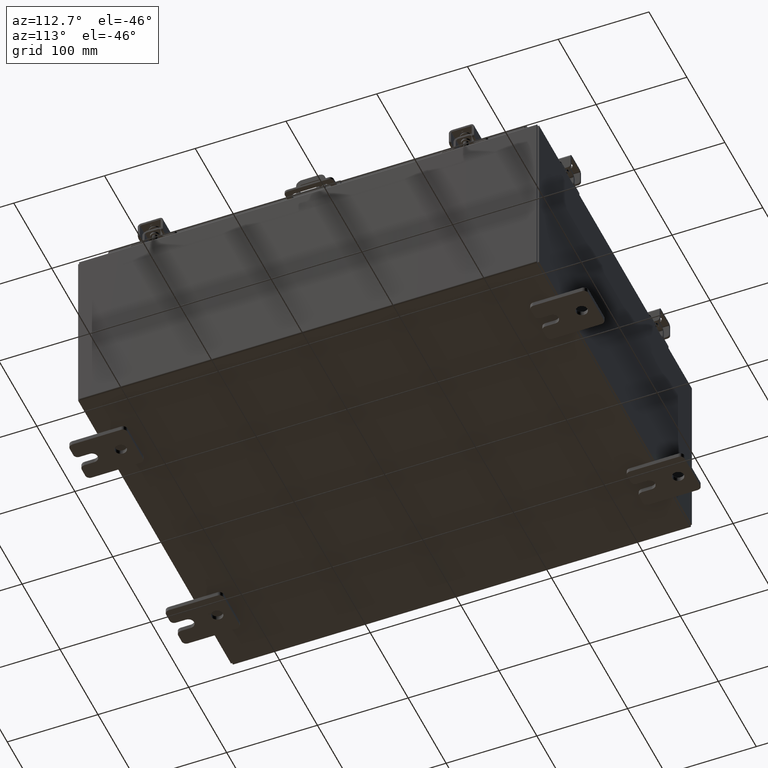
[diagram: clean part render]
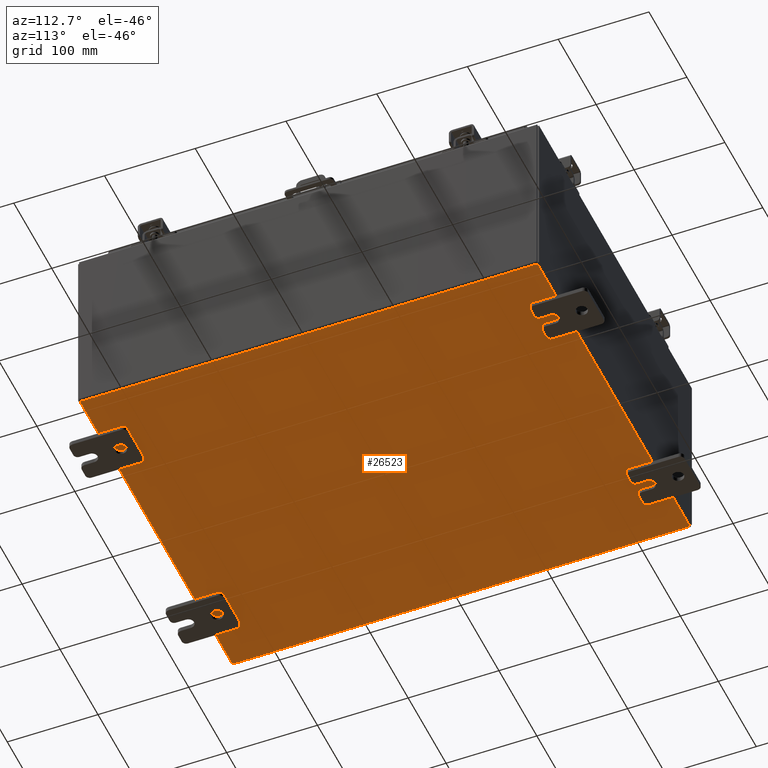
[diagram: same view with one face highlighted and labeled with its STEP entity id]
A machine part, auxiliary view. The second image highlights one B-rep face of the part: STEP entity #26523.
In plain terms, the highlighted planar face has unit normal (0, 0, -1).
Its self-contained STEP definition (entity closure, byte-faithful):
#1952 = VERTEX_POINT ( 'NONE', #5016 ) ;
#3849 = LINE ( 'NONE', #15321, #26580 ) ;
#4072 = CARTESIAN_POINT ( 'NONE',  ( -7.999999999999997300, -9.925300000000001800, -0.07470000000000000300 ) ) ;
#5016 = CARTESIAN_POINT ( 'NONE',  ( -7.912299999999997400, -9.925300000000000000, -0.07469999999999994700 ) ) ;
#6398 = CARTESIAN_POINT ( 'NONE',  ( 7.912300000000001900, 9.925299999999998200, -0.07469999999999994700 ) ) ;
#7271 = VECTOR ( 'NONE', #26670, 39.37007874015748100 ) ;
#8585 = EDGE_CURVE ( 'NONE', #1952, #21491, #25361, .T. ) ;
#8658 = DIRECTION ( 'NONE',  ( 1.000000000000000000, 0.0000000000000000000, 0.0000000000000000000 ) ) ;
#8989 = DIRECTION ( 'NONE',  ( 0.0000000000000000000, 0.0000000000000000000, -1.000000000000000000 ) ) ;
#10555 = EDGE_LOOP ( 'NONE', ( #25549, #29452, #15090, #21195 ) ) ;
#10963 = DIRECTION ( 'NONE',  ( -0.0000000000000000000, -1.000000000000000000, -0.0000000000000000000 ) ) ;
#11747 = CARTESIAN_POINT ( 'NONE',  ( 7.912300000000001900, 9.925299999999996500, -0.07469999999999994700 ) ) ;
#12279 = CARTESIAN_POINT ( 'NONE',  ( -7.912299999999997400, 9.925299999999998200, -0.07470000000000000300 ) ) ;
#15090 = ORIENTED_EDGE ( 'NONE', *, *, #25764, .F. ) ;
#15321 = CARTESIAN_POINT ( 'NONE',  ( -7.999999999999997300, 9.925299999999998200, -0.07470000000000000300 ) ) ;
#15821 = CARTESIAN_POINT ( 'NONE',  ( 7.912300000000001900, -9.925300000000001800, -0.07470000000000000300 ) ) ;
#16263 = VERTEX_POINT ( 'NONE', #15821 ) ;
#16635 = LINE ( 'NONE', #6398, #27261 ) ;
#20123 = AXIS2_PLACEMENT_3D ( 'NONE', #20307, #8989, #24842 ) ;
#20169 = FACE_OUTER_BOUND ( 'NONE', #10555, .T. ) ;
#20307 = CARTESIAN_POINT ( 'NONE',  ( 0.0000000000000000000, 0.0000000000000000000, -0.07470000000000000300 ) ) ;
#21195 = ORIENTED_EDGE ( 'NONE', *, *, #26980, .T. ) ;
#21491 = VERTEX_POINT ( 'NONE', #12279 ) ;
#23087 = VERTEX_POINT ( 'NONE', #11747 ) ;
#24717 = VECTOR ( 'NONE', #8658, 39.37007874015748100 ) ;
#24842 = DIRECTION ( 'NONE',  ( -1.000000000000000000, 0.0000000000000000000, -0.0000000000000000000 ) ) ;
#25361 = LINE ( 'NONE', #28982, #7271 ) ;
#25421 = LINE ( 'NONE', #4072, #24717 ) ;
#25549 = ORIENTED_EDGE ( 'NONE', *, *, #27886, .F. ) ;
#25764 = EDGE_CURVE ( 'NONE', #23087, #21491, #3849, .T. ) ;
#26523 = ADVANCED_FACE ( 'NONE', ( #20169 ), #29366, .T. ) ;
#26580 = VECTOR ( 'NONE', #26697, 39.37007874015748100 ) ;
#26670 = DIRECTION ( 'NONE',  ( -0.0000000000000000000, 1.000000000000000000, -0.0000000000000000000 ) ) ;
#26697 = DIRECTION ( 'NONE',  ( -1.000000000000000000, -0.0000000000000000000, -0.0000000000000000000 ) ) ;
#26980 = EDGE_CURVE ( 'NONE', #23087, #16263, #16635, .T. ) ;
#27261 = VECTOR ( 'NONE', #10963, 39.37007874015748100 ) ;
#27886 = EDGE_CURVE ( 'NONE', #1952, #16263, #25421, .T. ) ;
#28982 = CARTESIAN_POINT ( 'NONE',  ( -7.912299999999997400, -9.925300000000001800, -0.07469999999999994700 ) ) ;
#29366 = PLANE ( 'NONE',  #20123 ) ;
#29452 = ORIENTED_EDGE ( 'NONE', *, *, #8585, .T. ) ;